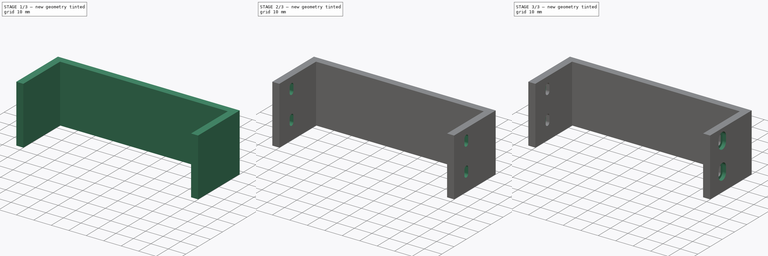
[diagram: build sequence overview — one tinted view per stage of 3, left to right]
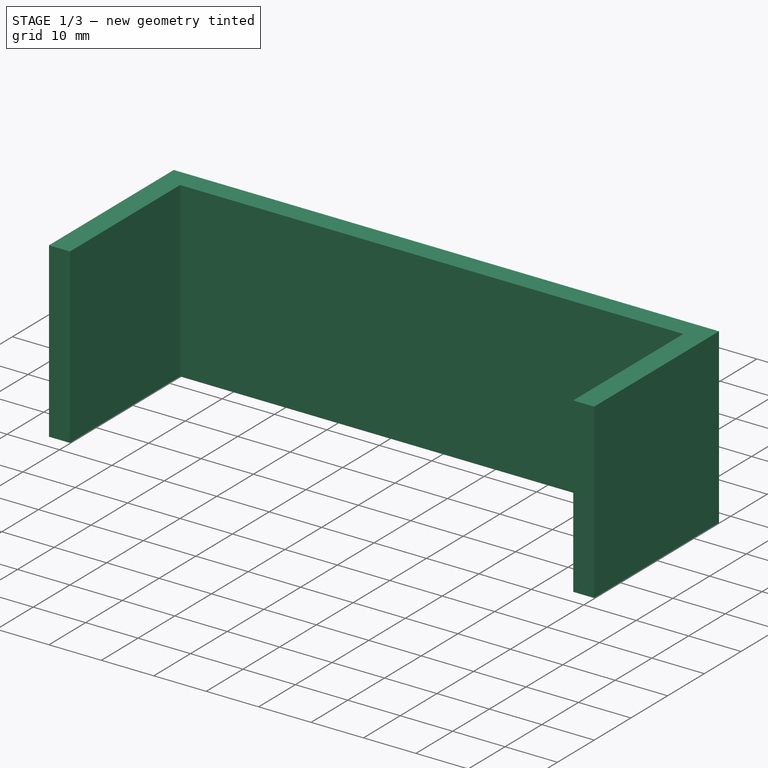
[diagram: stage 1 of 3 — iso view after this stage's code; geometry added in this stage tinted green]
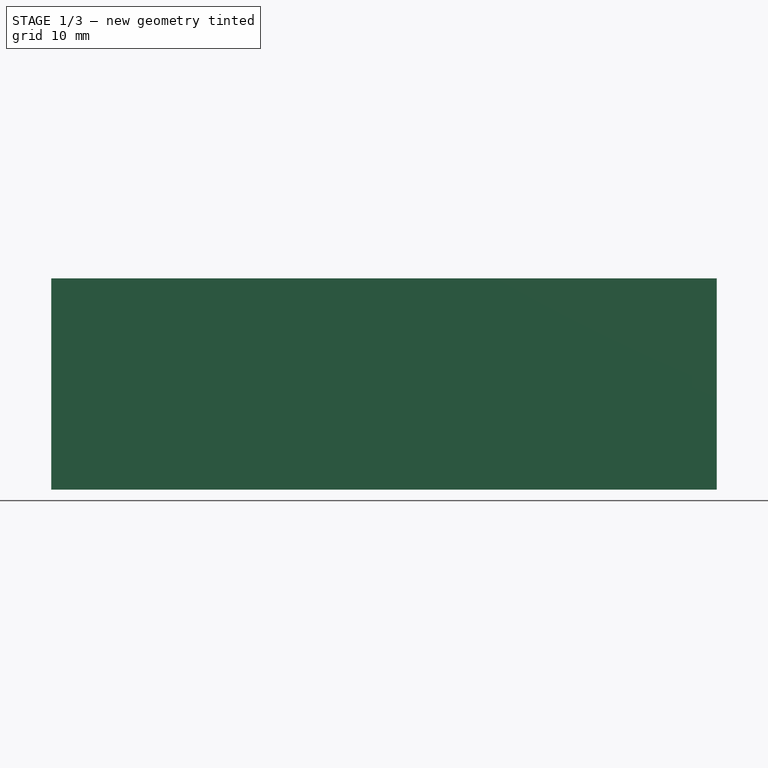
[diagram: stage 1 of 3 — front view after this stage's code; geometry added in this stage tinted green]
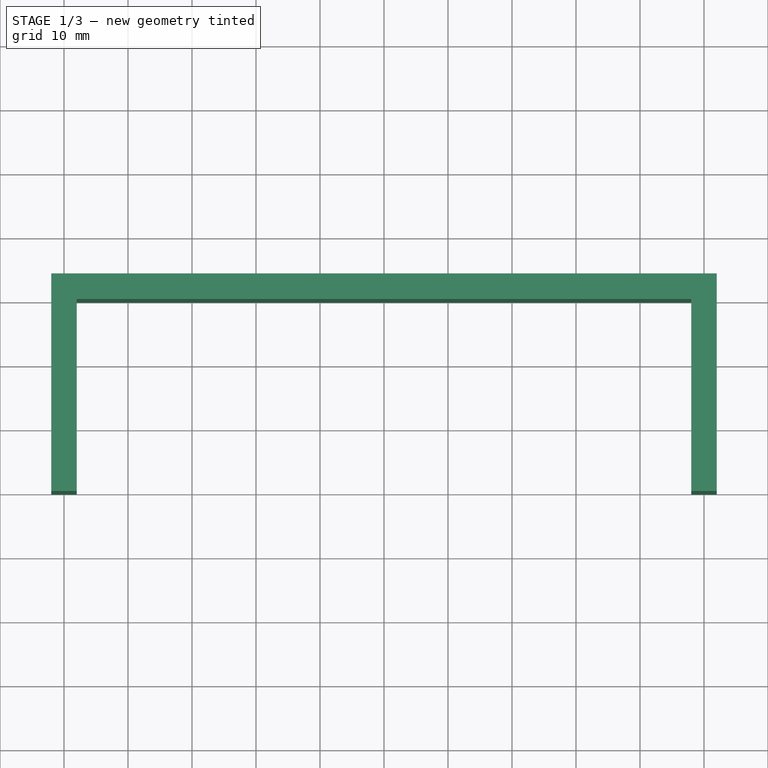
[diagram: stage 1 of 3 — top view after this stage's code; geometry added in this stage tinted green]
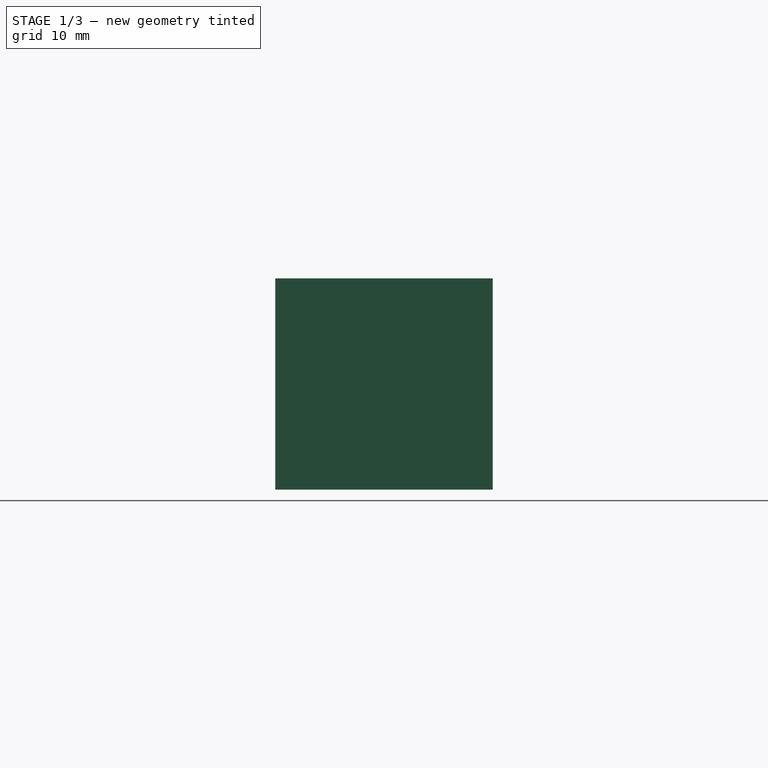
[diagram: stage 1 of 3 — right view after this stage's code; geometry added in this stage tinted green]
FCSTD DOCUMENT  (FreeCAD 0.21R33771 (Git))
Label: back-plate
License: All rights reserved
LicenseURL: https://en.wikipedia.org/wiki/All_rights_reserved
objects: Sketcher::SketchObject×5, PartDesign::Pocket×4, PartDesign::Pad×1, PartDesign::Body×1
note: 16 computed .brp shape members not serialized (recipe doc carries the construction recipe); baked Part::Feature solids carry a one-line shape summary decoded from their .brp

FEATURE [Sketcher::SketchObject] Sketch
  FullyConstrained = true
  MapMode = 5
  Support = -> [XY_Plane]
  sketch-geometry (4):
    g0: LineSegment StartX=-52 StartY=0 StartZ=0 EndX=52 EndY=0 EndZ=0
    g1: LineSegment StartX=52 StartY=0 StartZ=0 EndX=52 EndY=34 EndZ=0
    g2: LineSegment StartX=52 StartY=34 StartZ=0 EndX=-52 EndY=34 EndZ=0
    g3: LineSegment StartX=-52 StartY=34 StartZ=0 EndX=-52 EndY=0 EndZ=0
  constraints (11):
    c: Coincident(g0,g1)
    c: Coincident(g1,g2)
    c: Coincident(g2,g3)
    c: Coincident(g3,g0)
    c: Horizontal(g2)
    c: Vertical(g1)
    c: Vertical(g3)
    c: PointOnObject(g0,g-1)
    c: Symmetric(g0,g0,g-2)
    c: DistanceX(g2,g2) = 104
    c: DistanceY(g1,g1) = 34
FEATURE [PartDesign::Pad] Pad
  Direction = (0,0,1)
  Length = 33
  Length2 = 10
  Profile = -> Sketch
  ReferenceAxis = -> Sketch [N_Axis]
  Type = 0
FEATURE [Sketcher::SketchObject] Sketch001
  ExternalGeometry = -> [Pad]
  FullyConstrained = true
  MapMode = 5
  Placement = pos=(0,0,33) rot=(0,0,1;0rad)
  Support = -> [Pad]
  sketch-geometry (4):
    g0: LineSegment StartX=-48 StartY=0 StartZ=0 EndX=48 EndY=0 EndZ=0
    g1: LineSegment StartX=48 StartY=0 StartZ=0 EndX=48 EndY=30 EndZ=0
    g2: LineSegment StartX=48 StartY=30 StartZ=0 EndX=-48 EndY=30 EndZ=0
    g3: LineSegment StartX=-48 StartY=30 StartZ=0 EndX=-48 EndY=0 EndZ=0
  constraints (11):
    c: Coincident(g0,g1)
    c: Coincident(g1,g2)
    c: Coincident(g2,g3)
    c: Coincident(g3,g0)
    c: Horizontal(g2)
    c: Vertical(g1)
    c: Vertical(g3)
    c: PointOnObject(g0,g-1)
    c: Symmetric(g0,g0,g-2)
    c: DistanceX(g0,g-3) = 4
    c: DistanceY(g1,g-4) = 4
FEATURE [PartDesign::Pocket] Pocket
  BaseFeature = -> Pad
  Direction = (0,0,-1)
  Length = 5
  Length2 = 5
  Profile = -> Sketch001
  ReferenceAxis = -> Sketch001 [N_Axis]
  Type = 1
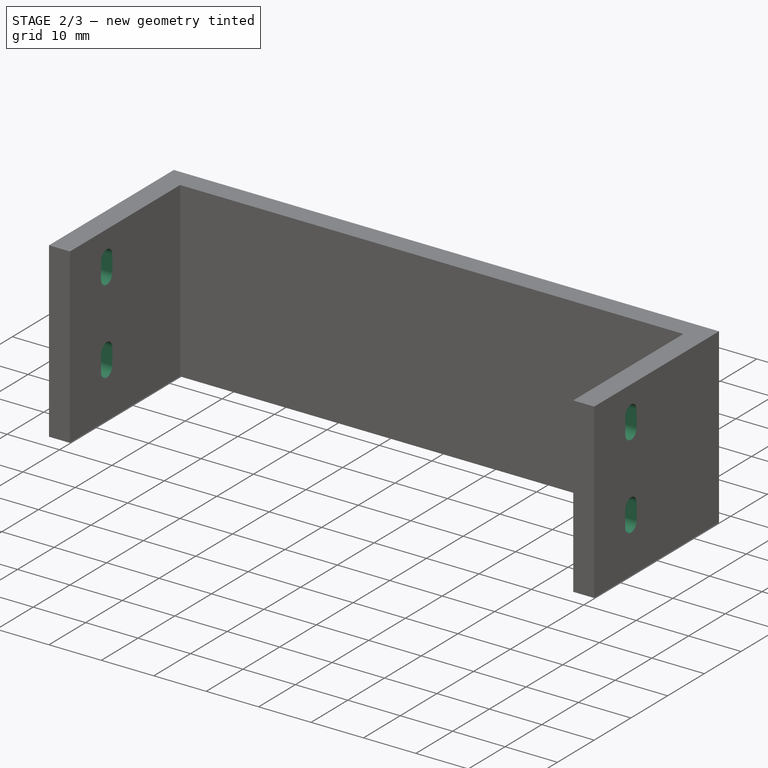
[diagram: stage 2 of 3 — iso view after this stage's code; geometry added in this stage tinted green]
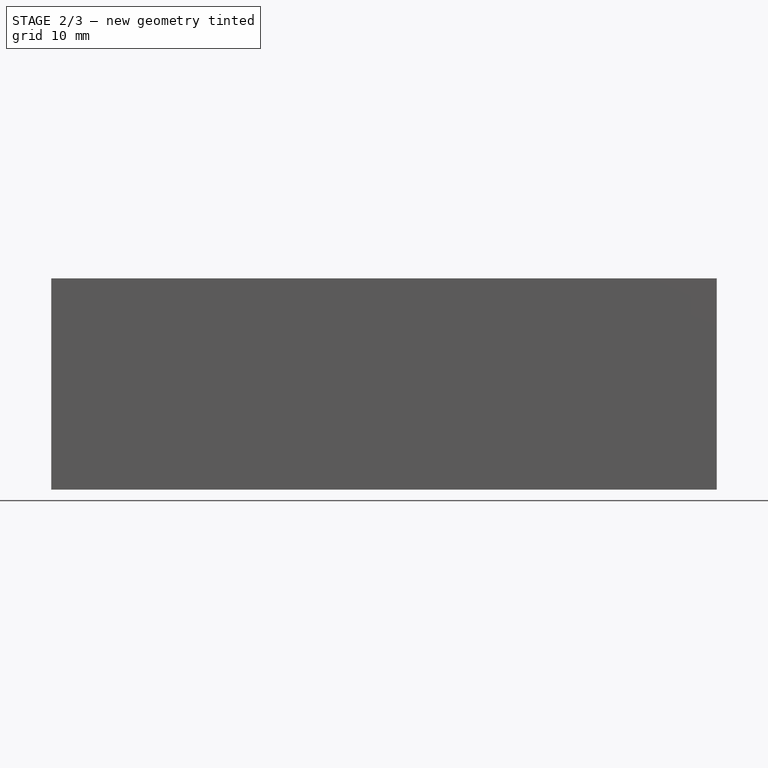
[diagram: stage 2 of 3 — front view after this stage's code; geometry added in this stage tinted green]
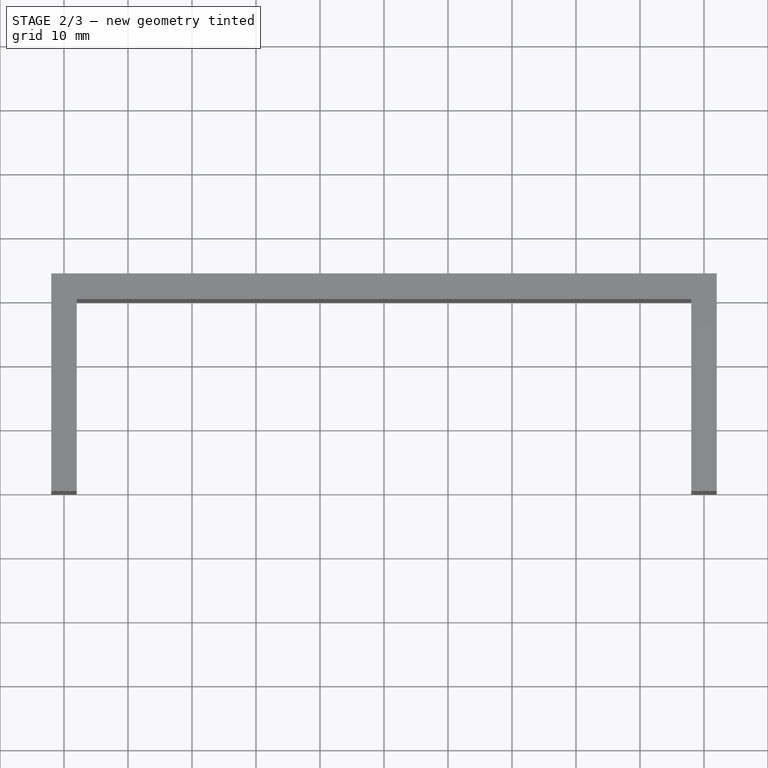
[diagram: stage 2 of 3 — top view after this stage's code; geometry added in this stage tinted green]
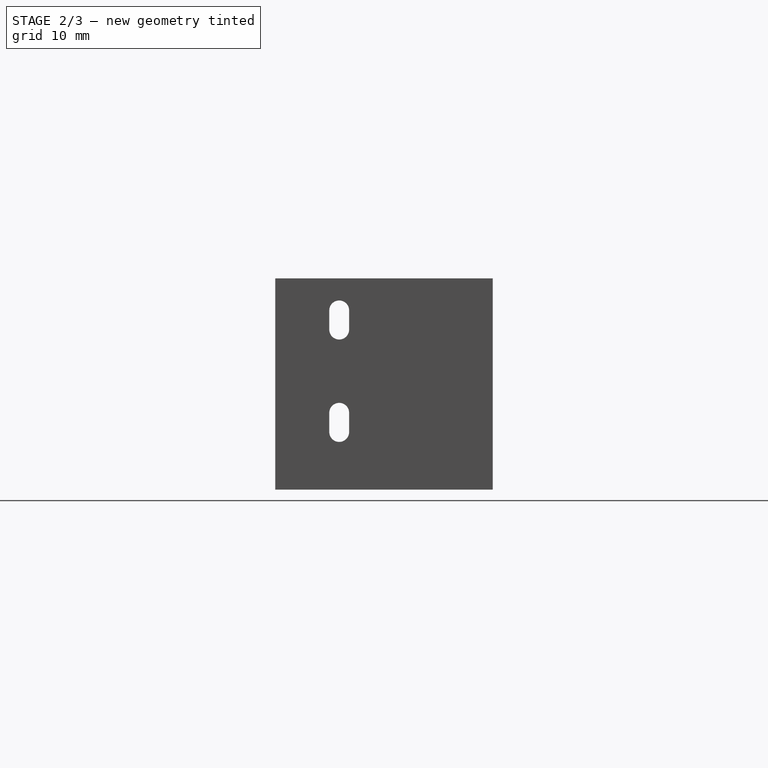
[diagram: stage 2 of 3 — right view after this stage's code; geometry added in this stage tinted green]
FEATURE [Sketcher::SketchObject] Sketch002
  ExternalGeometry = -> [Pocket]
  FullyConstrained = true
  MapMode = 5
  Placement = pos=(52,0,0) rot=(0.57735,0.57735,0.57735;2.0944rad)
  Support = -> [Pocket]
  sketch-geometry (9):
    g0: LineSegment StartX=10 StartY=33 StartZ=0 EndX=10 EndY=0 EndZ=0
    g1: ArcOfCircle CenterX=10 CenterY=28 CenterZ=0 NormalX=0 NormalY=0 NormalZ=1 AngleXU=0 Radius=1.55 StartAngle=1e-16 EndAngle=3.14159
    g2: ArcOfCircle CenterX=10 CenterY=25 CenterZ=0 NormalX=0 NormalY=0 NormalZ=1 AngleXU=0 Radius=1.55 StartAngle=3.14159 EndAngle=6.28319
    g3: LineSegment StartX=8.45 StartY=28 StartZ=0 EndX=8.45 EndY=25 EndZ=0
    g4: LineSegment StartX=11.55 StartY=25 StartZ=0 EndX=11.55 EndY=28 EndZ=0
    g5: ArcOfCircle CenterX=10 CenterY=12 CenterZ=0 NormalX=0 NormalY=0 NormalZ=1 AngleXU=0 Radius=1.55 StartAngle=0 EndAngle=3.14159
    g6: ArcOfCircle CenterX=10 CenterY=9 CenterZ=0 NormalX=0 NormalY=0 NormalZ=1 AngleXU=0 Radius=1.55 StartAngle=3.14159 EndAngle=6.28319
    g7: LineSegment StartX=8.45 StartY=12 StartZ=0 EndX=8.45 EndY=9 EndZ=0
    g8: LineSegment StartX=11.55 StartY=9 StartZ=0 EndX=11.55 EndY=12 EndZ=0
  constraints (24):
    c: PointOnObject(g0,g-3)
    c: PointOnObject(g0,g-1)
    c: Vertical(g0)
    c: DistanceX(g0,g-3) = 24
    c: Tangent(g1,g3) = -1.5708
    c: Tangent(g3,g2) = -1.5708
    c: Tangent(g2,g4) = -1.5708
    c: Tangent(g4,g1) = -1.5708
    c: Equal(g1,g2)
    c: PointOnObject(g1,g0)
    c: PointOnObject(g2,g0)
    c: Tangent(g5,g7) = -1.5708
    c: Tangent(g7,g6) = -1.5708
    c: Tangent(g6,g8) = -1.5708
    c: Tangent(g8,g5) = -1.5708
    c: Equal(g5,g6)
    c: PointOnObject(g5,g0)
    c: PointOnObject(g6,g0)
    c: DistanceX(g1,g1) = 3.1
    c: DistanceX(g5,g5) = 3.1
    c: DistanceY(g4,g4) = 3
    c: DistanceY(g8,g8) = 3
    c: DistanceY(g1,g-3) = 5
    c: DistanceY(g5,g-3) = 21
FEATURE [PartDesign::Pocket] Pocket001
  BaseFeature = -> Pocket
  Direction = (-1,0,0)
  Length = 5
  Length2 = 5
  Profile = -> Sketch002
  ReferenceAxis = -> Sketch002 [N_Axis]
  Type = 1
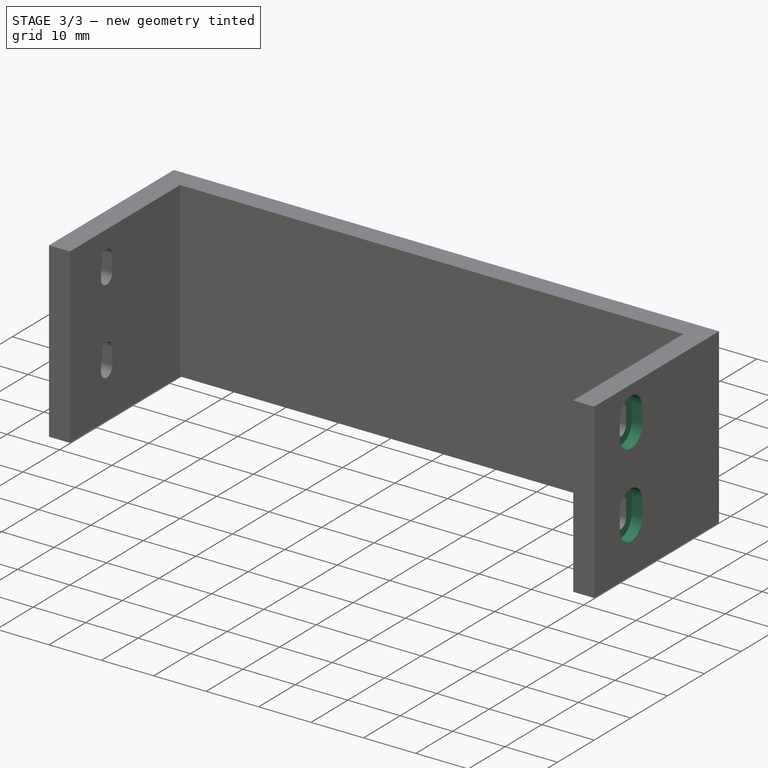
[diagram: stage 3 of 3 — iso view after this stage's code; geometry added in this stage tinted green]
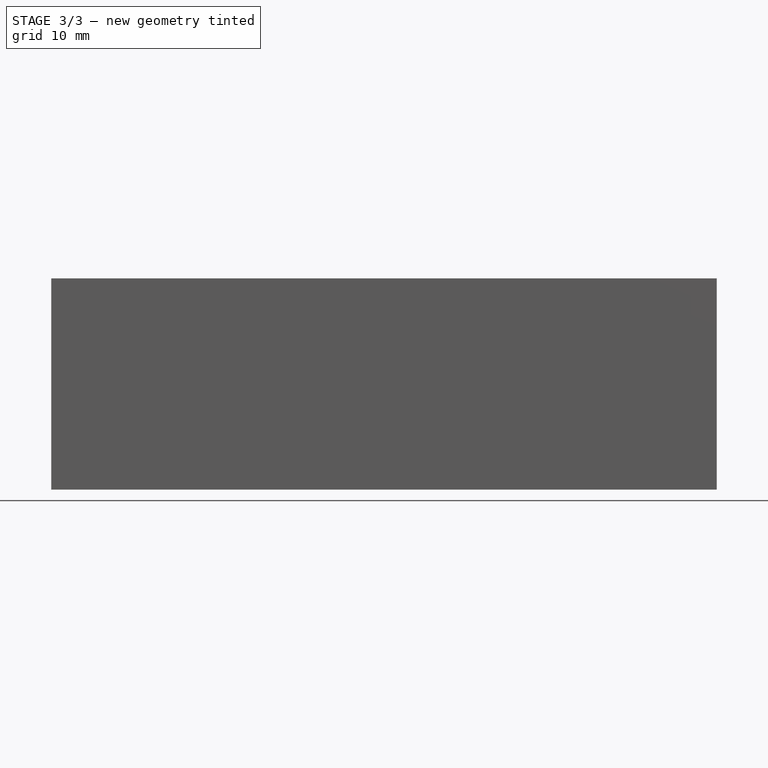
[diagram: stage 3 of 3 — front view after this stage's code; geometry added in this stage tinted green]
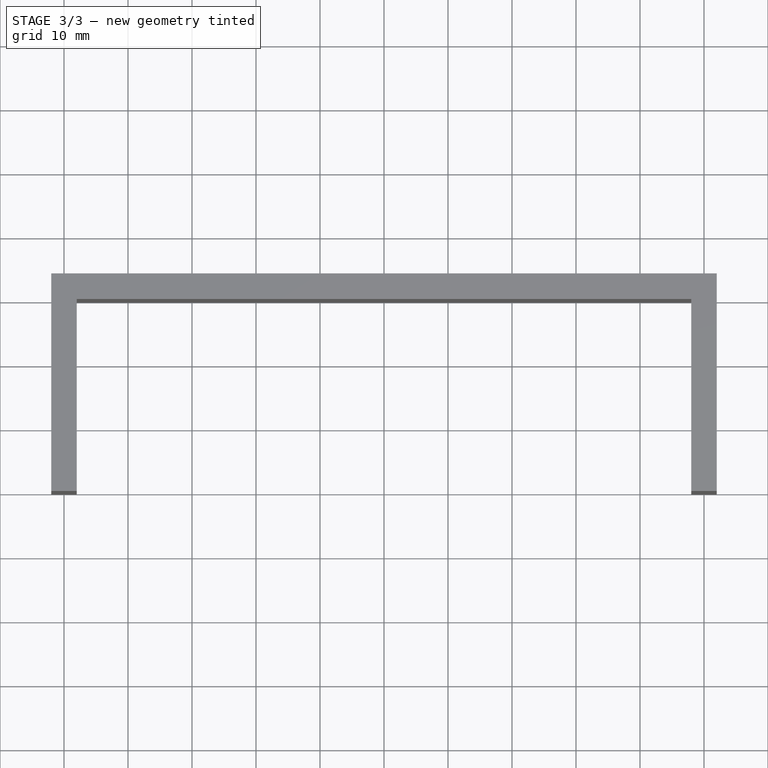
[diagram: stage 3 of 3 — top view after this stage's code; geometry added in this stage tinted green]
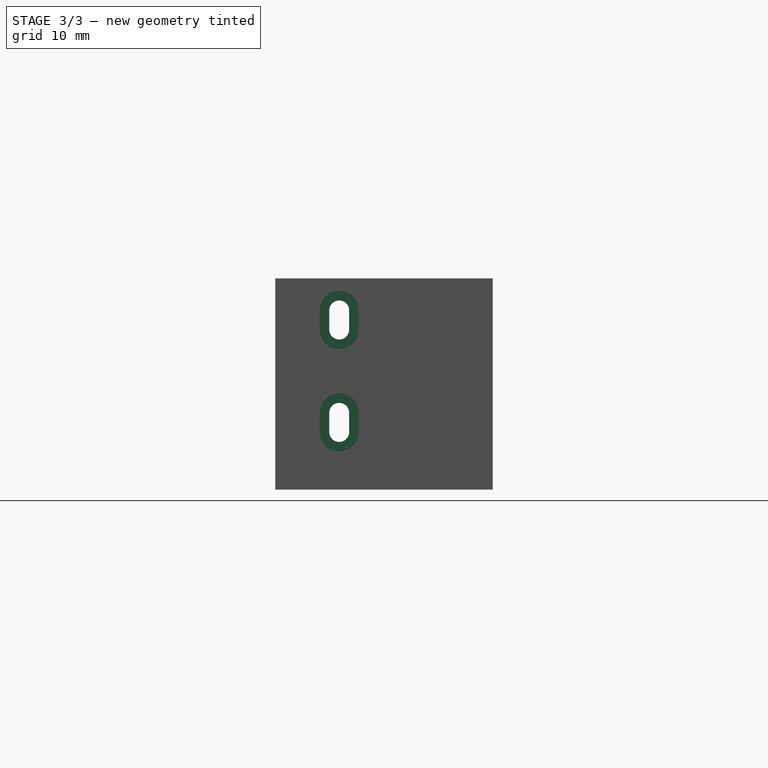
[diagram: stage 3 of 3 — right view after this stage's code; geometry added in this stage tinted green]
FEATURE [Sketcher::SketchObject] Sketch003
  ExternalGeometry = -> [Pocket001]
  FullyConstrained = true
  MapMode = 5
  Placement = pos=(52,0,0) rot=(0.57735,0.57735,0.57735;2.0944rad)
  Support = -> [Pocket001]
  sketch-geometry (12):
    g0: ArcOfCircle CenterX=10 CenterY=28 CenterZ=0 NormalX=0 NormalY=0 NormalZ=1 AngleXU=0 Radius=3.05 StartAngle=7.3623e-12 EndAngle=3.14159
    g1: ArcOfCircle CenterX=10 CenterY=25 CenterZ=0 NormalX=0 NormalY=0 NormalZ=1 AngleXU=0 Radius=3.05 StartAngle=3.14159 EndAngle=6.28319
    g2: LineSegment StartX=6.95 StartY=28 StartZ=0 EndX=6.95 EndY=25 EndZ=0
    g3: LineSegment StartX=13.05 StartY=25 StartZ=0 EndX=13.05 EndY=28 EndZ=0
    g4: ArcOfCircle CenterX=10 CenterY=12 CenterZ=0 NormalX=0 NormalY=0 NormalZ=1 AngleXU=0 Radius=3.05 StartAngle=3.7e-15 EndAngle=3.14159
    g5: ArcOfCircle CenterX=10 CenterY=9 CenterZ=0 NormalX=0 NormalY=0 NormalZ=1 AngleXU=0 Radius=3.05 StartAngle=3.14159 EndAngle=6.28319
    g6: LineSegment StartX=6.95 StartY=12 StartZ=0 EndX=6.95 EndY=9 EndZ=0
    g7: LineSegment StartX=13.05 StartY=9 StartZ=0 EndX=13.05 EndY=12 EndZ=0
    g8: LineSegment StartX=0 StartY=28 StartZ=0 EndX=34 EndY=28 EndZ=0
    g9: LineSegment StartX=0 StartY=25 StartZ=0 EndX=34 EndY=25 EndZ=0
    g10: LineSegment StartX=0 StartY=12 StartZ=0 EndX=34 EndY=12 EndZ=0
    g11: LineSegment StartX=0 StartY=9 StartZ=0 EndX=34 EndY=9 EndZ=0
  constraints (32):
    c: Tangent(g0,g2) = -1.5708
    c: Tangent(g2,g1) = -1.5708
    c: Tangent(g1,g3) = -1.5708
    c: Tangent(g3,g0) = -1.5708
    c: Equal(g0,g1)
    c: Tangent(g4,g6) = -1.5708
    c: Tangent(g6,g5) = -1.5708
    c: Tangent(g5,g7) = -1.5708
    c: Tangent(g7,g4) = -1.5708
    c: Equal(g4,g5)
    c: PointOnObject(g8,g-2)
    c: PointOnObject(g8,g-7)
    c: Horizontal(g8)
    c: PointOnObject(g9,g-2)
    c: PointOnObject(g9,g-7)
    c: Horizontal(g9)
    c: PointOnObject(g10,g-2)
    c: PointOnObject(g10,g-7)
    c: Horizontal(g10)
    c: PointOnObject(g11,g-2)
    c: PointOnObject(g11,g-7)
    c: Horizontal(g11)
    c: PointOnObject(g-5,g10)
    c: PointOnObject(g-6,g11)
    c: PointOnObject(g-4,g9)
    c: PointOnObject(g-3,g8)
    c: Coincident(g5,g-6)
    c: Coincident(g-5,g4)
    c: DistanceX(g-5,g4) = 1.5
    c: Coincident(g-4,g1)
    c: Coincident(g-3,g0)
    c: DistanceX(g-3,g3) = 1.5
FEATURE [PartDesign::Pocket] Pocket002
  BaseFeature = -> Pocket001
  Direction = (-1,0,0)
  Length = 2
  Length2 = 5
  Profile = -> Sketch003
  ReferenceAxis = -> Sketch003 [N_Axis]
  Type = 0
FEATURE [Sketcher::SketchObject] Sketch004
  ExternalGeometry = -> [Pocket002]
  FullyConstrained = true
  MapMode = 5
  Placement = pos=(-52,0,0) rot=(0.57735,-0.57735,-0.57735;2.0944rad)
  Support = -> [Pocket002]
  sketch-geometry (8):
    g0: ArcOfCircle CenterX=-10 CenterY=28 CenterZ=0 NormalX=0 NormalY=0 NormalZ=1 AngleXU=0 Radius=3.05 StartAngle=-1.0472e-12 EndAngle=3.14159
    g1: ArcOfCircle CenterX=-10 CenterY=25 CenterZ=0 NormalX=0 NormalY=0 NormalZ=1 AngleXU=0 Radius=3.05 StartAngle=3.14159 EndAngle=6.28319
    g2: LineSegment StartX=-13.05 StartY=28 StartZ=0 EndX=-13.05 EndY=25 EndZ=0
    g3: LineSegment StartX=-6.95 StartY=25 StartZ=0 EndX=-6.95 EndY=28 EndZ=0
    g4: ArcOfCircle CenterX=-10 CenterY=12 CenterZ=0 NormalX=0 NormalY=0 NormalZ=1 AngleXU=0 Radius=3.05 StartAngle=0 EndAngle=3.14159
    g5: ArcOfCircle CenterX=-10 CenterY=9 CenterZ=0 NormalX=0 NormalY=0 NormalZ=1 AngleXU=0 Radius=3.05 StartAngle=3.14159 EndAngle=6.28319
    g6: LineSegment StartX=-13.05 StartY=12 StartZ=0 EndX=-13.05 EndY=9 EndZ=0
    g7: LineSegment StartX=-6.95 StartY=9 StartZ=0 EndX=-6.95 EndY=12 EndZ=0
  constraints (16):
    c: Tangent(g0,g2) = -1.5708
    c: Tangent(g2,g1) = -1.5708
    c: Tangent(g1,g3) = -1.5708
    c: Tangent(g3,g0) = -1.5708
    c: Equal(g0,g1)
    c: Tangent(g4,g6) = -1.5708
    c: Tangent(g6,g5) = -1.5708
    c: Tangent(g5,g7) = -1.5708
    c: Tangent(g7,g4) = -1.5708
    c: Equal(g4,g5)
    c: Coincident(g-3,g0)
    c: Coincident(g1,g-4)
    c: Coincident(g4,g-5)
    c: Coincident(g-6,g5)
    c: DistanceX(g-3,g0) = 1.5
    c: DistanceX(g-5,g4) = 1.5
FEATURE [PartDesign::Pocket] Pocket003
  BaseFeature = -> Pocket002
  Direction = (1,0,0)
  Length = 2
  Length2 = 5
  Profile = -> Sketch004
  ReferenceAxis = -> Sketch004 [N_Axis]
  Type = 0
FEATURE [PartDesign::Body] Body
  Group = -> [Sketch,Pad,Sketch001,Pocket,Sketch002,Pocket001,Sketch003,Pocket002,Sketch004,Pocket003]
  Origin = -> Origin
  Tip = -> Pocket003
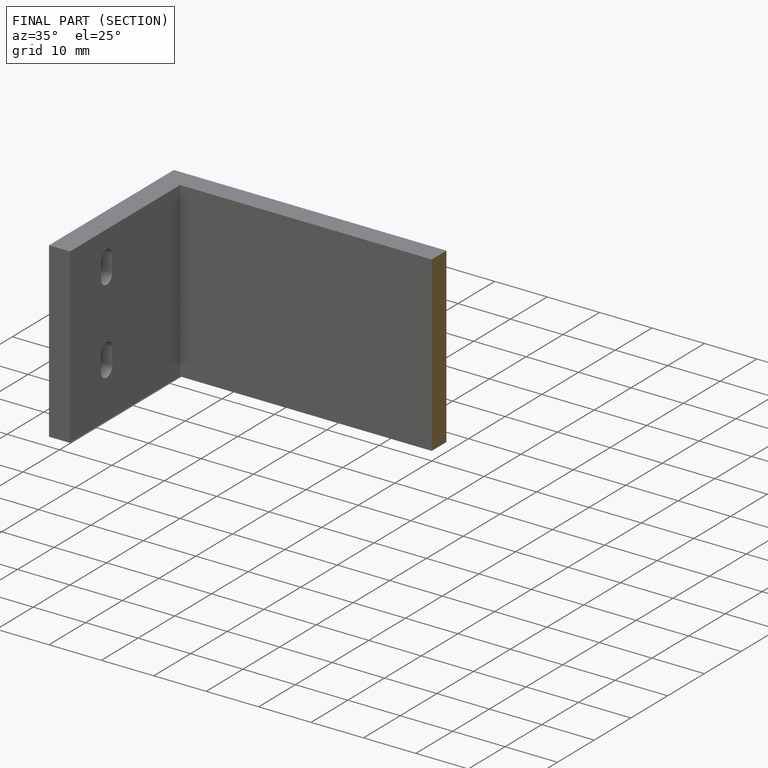
[diagram: finished part — half-section view (interior)]
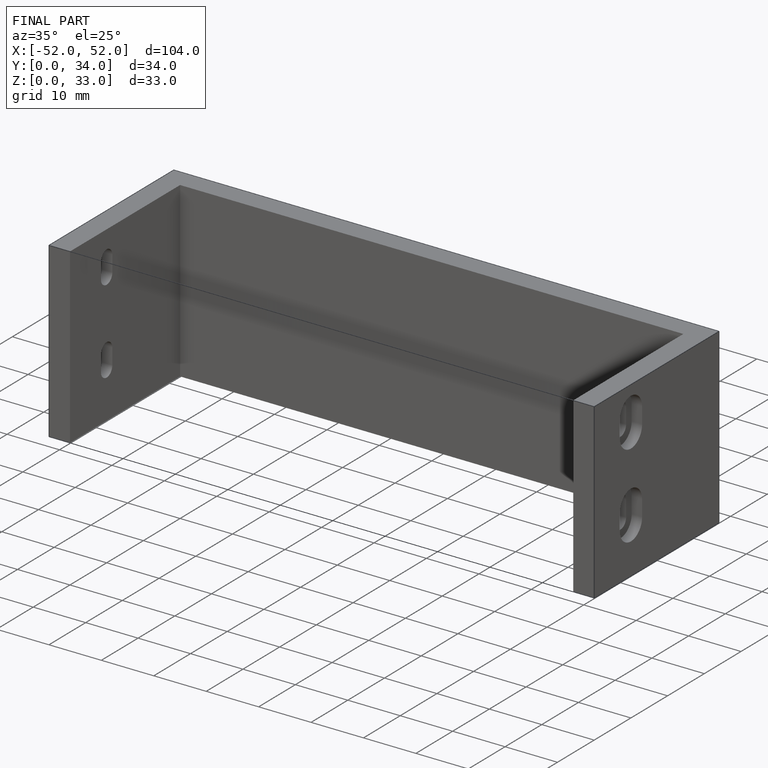
[diagram: finished part — iso view with bounding-box wireframe]
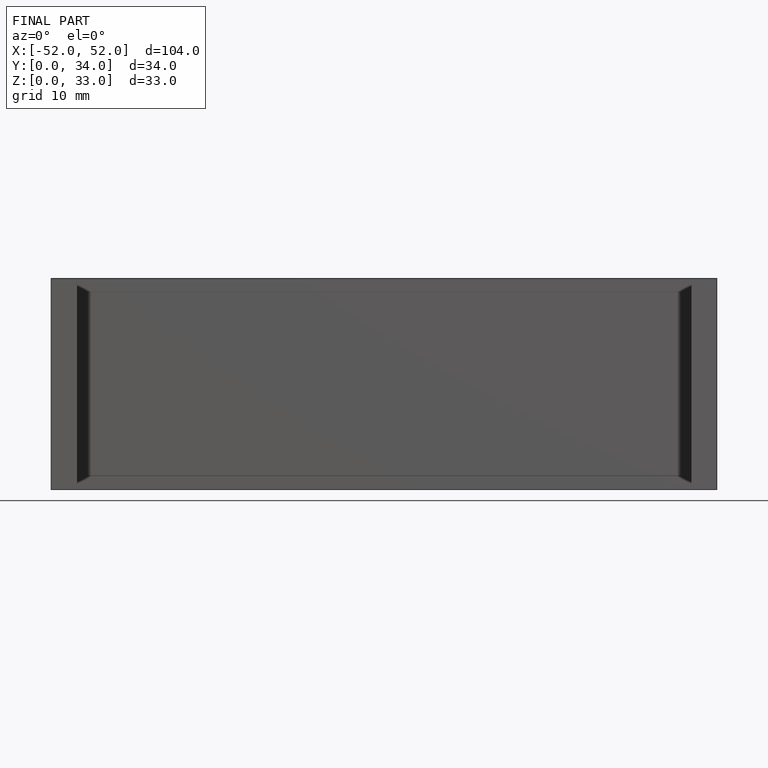
[diagram: finished part — front view with bounding-box wireframe]
